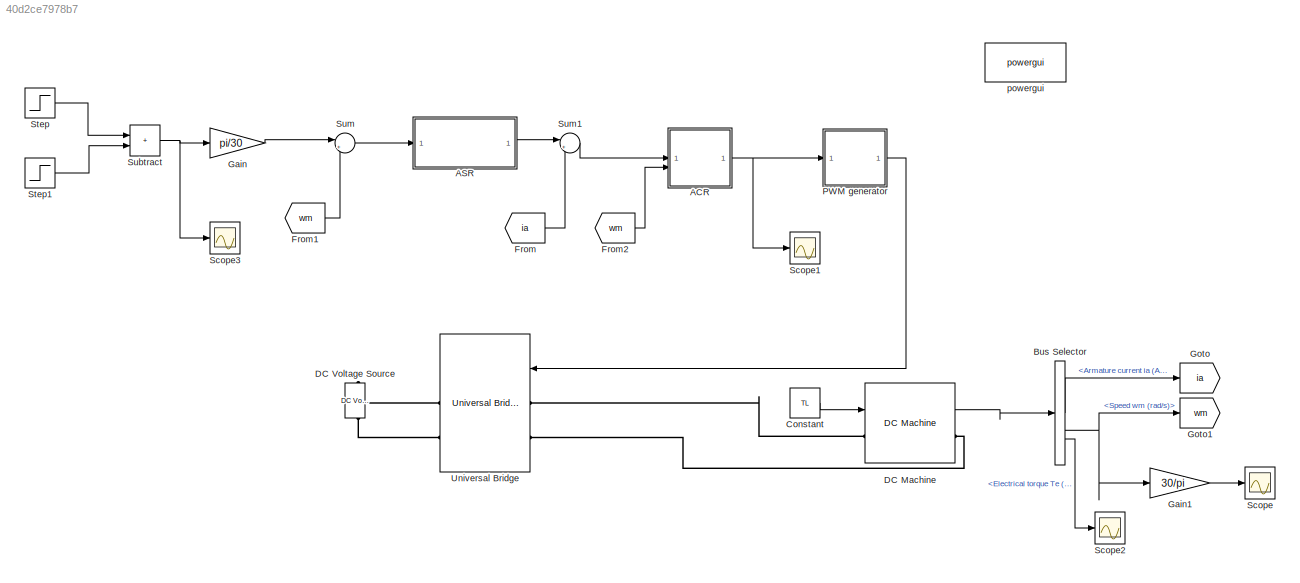
MODEL slx_40d2ce7978b7
KIND model
CONFIG AbsTol = auto
CONFIG EnableMultiTasking = off
CONFIG FixedStep = auto
CONFIG MaxStep = auto
CONFIG MinStep = auto
CONFIG RelTol = 1e-3
CONFIG SampleTimeConstraint = Unconstrained
CONFIG SolverName = FixedStepAuto
CONFIG StartTime = 0.0
CONFIG StopTime = 3
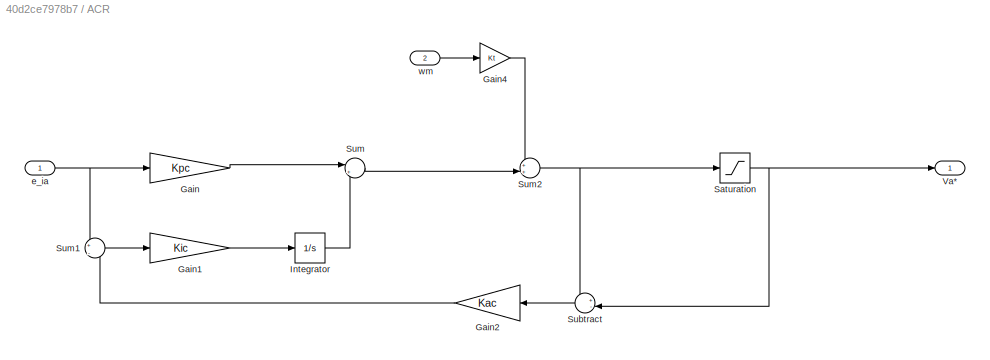
BLOCK [SubSystem] ACR
BLOCK [Gain] ACR/Gain
  Gain = Kpc
BLOCK [Gain] ACR/Gain1
  Gain = Kic
BLOCK [Gain] ACR/Gain2
  Gain = Kac
BLOCK [Gain] ACR/Gain4
  Gain = Kt
BLOCK [Integrator] ACR/Integrator
BLOCK [Saturate] ACR/Saturation
  LowerLimit = -Va_rated
  UpperLimit = Va_rated
BLOCK [Sum] ACR/Subtract
  Inputs = +-|
BLOCK [Sum] ACR/Sum
  Inputs = |++
BLOCK [Sum] ACR/Sum1
  Inputs = +|-
BLOCK [Sum] ACR/Sum2
  Inputs = ++|
BLOCK [Outport] ACR/Va*
BLOCK [Inport] ACR/e_ia
BLOCK [Inport] ACR/wm
  Port = 2
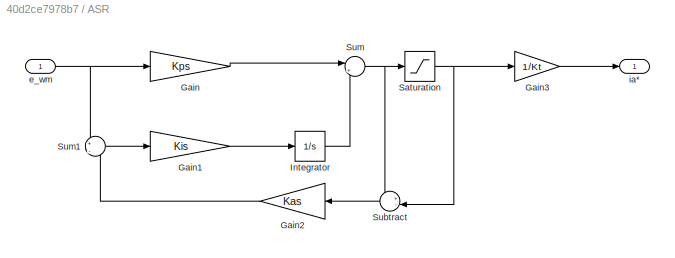
BLOCK [SubSystem] ASR
BLOCK [Gain] ASR/Gain
  Gain = Kps
BLOCK [Gain] ASR/Gain1
  Gain = Kis
BLOCK [Gain] ASR/Gain2
  Gain = Kas
BLOCK [Gain] ASR/Gain3
  Gain = 1/Kt
BLOCK [Integrator] ASR/Integrator
BLOCK [Saturate] ASR/Saturation
  LowerLimit = -Te_rated
  UpperLimit = Te_rated
BLOCK [Sum] ASR/Subtract
  Inputs = +-|
BLOCK [Sum] ASR/Sum
  Inputs = |++
BLOCK [Sum] ASR/Sum1
  Inputs = +|-
BLOCK [Inport] ASR/e_wm
BLOCK [Outport] ASR/ia*
BLOCK [BusSelector] Bus Selector
  OutputSignals = Armature current ia (A),Speed wm (rad/s),Electrical torque Te (n m)
BLOCK [Constant] Constant
  Value = TL
BLOCK [Reference] DC Machine  REF=spsDCMachineLib/DC Machine
  LibrarySourceBlock = sps_lib/Electrical Machines/DC Machine
  SourceBlock = spsDCMachineLib/DC Machine
  SourceType = DC machine
BLOCK [Reference] DC Voltage Source  REF=spsDCVoltageSourceLib/DC Voltage Source
  LibrarySourceBlock = sps_lib/Sources/DC Voltage Source
  SourceBlock = spsDCVoltageSourceLib/DC Voltage Source
  SourceType = DC Voltage Source
BLOCK [From] From
  GotoTag = ia
BLOCK [From] From1
  GotoTag = wm
BLOCK [From] From2
  GotoTag = wm
BLOCK [Gain] Gain
  Gain = pi/30
BLOCK [Gain] Gain1
  Gain = 30/pi
BLOCK [Goto] Goto
  GotoTag = ia
BLOCK [Goto] Goto1
  GotoTag = wm
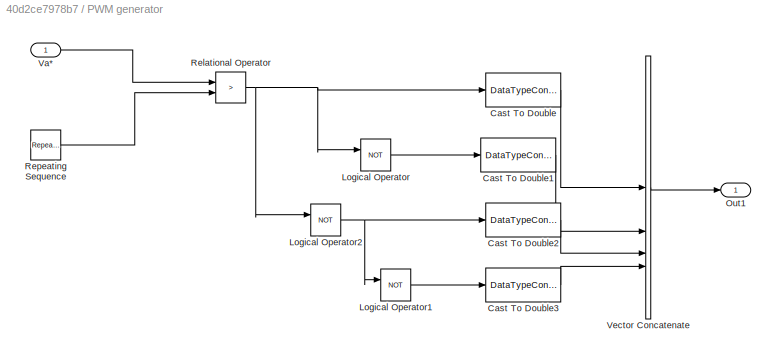
BLOCK [SubSystem] PWM generator
BLOCK [DataTypeConversion] PWM generator/Cast To Double
  OutDataTypeStr = double
  RndMeth = Floor
  SaturateOnIntegerOverflow = off
BLOCK [DataTypeConversion] PWM generator/Cast To Double1
  OutDataTypeStr = double
  RndMeth = Floor
  SaturateOnIntegerOverflow = off
BLOCK [DataTypeConversion] PWM generator/Cast To Double2
  OutDataTypeStr = double
  RndMeth = Floor
  SaturateOnIntegerOverflow = off
BLOCK [DataTypeConversion] PWM generator/Cast To Double3
  OutDataTypeStr = double
  RndMeth = Floor
  SaturateOnIntegerOverflow = off
BLOCK [Logic] PWM generator/Logical Operator
  AllPortsSameDT = off
  Operator = NOT
  OutDataTypeStr = boolean
BLOCK [Logic] PWM generator/Logical Operator1
  AllPortsSameDT = off
  Operator = NOT
  OutDataTypeStr = boolean
BLOCK [Logic] PWM generator/Logical Operator2
  AllPortsSameDT = off
  Operator = NOT
  OutDataTypeStr = boolean
BLOCK [Outport] PWM generator/Out1
BLOCK [RelationalOperator] PWM generator/Relational Operator
  InputSameDT = off
  Operator = >
  OutDataTypeStr = boolean
  RndMeth = Simplest
BLOCK [Reference] PWM generator/Repeating Sequence  REF=simulink/Sources/Repeating
Sequence
  SourceBlock = simulink/Sources/Repeating\nSequence
  SourceType = Repeating table
BLOCK [Inport] PWM generator/Va*
BLOCK [Concatenate] PWM generator/Vector Concatenate
  NumInputs = 4
BLOCK [Scope] Scope
  Floating = off
  NumInputPorts = 1
  ScopeSpecificationString = Simulink.scopes.TimeScopeBlockCfg('CurrentConfiguration', extmgr.ConfigurationSet(extmgr.Configuration('Core','General UI',true),extmgr.Configuration('Core','Source UI',true),extmgr.Configuration('Sources','WiredSimulink',true),extmgr.Configuration('Visuals','Time Domain',true,'SerializedDisplays',{struct('MinYLimReal','-1271.02224','MaxYLimReal','1268.55176','YLabelReal','','MinYLimMag','  0.0000...<+1507ch>
BLOCK [Scope] Scope1
  Floating = off
  NumInputPorts = 1
  ScopeSpecificationString = Simulink.scopes.TimeScopeBlockCfg('CurrentConfiguration', extmgr.ConfigurationSet(extmgr.Configuration('Core','General UI',true),extmgr.Configuration('Core','Source UI',true),extmgr.Configuration('Sources','WiredSimulink',true,'DataLoggingVariableName','ScopeData1'),extmgr.Configuration('Visuals','Time Domain',true,'SerializedDisplays',{struct('MinYLimReal','-175.00000','MaxYLimReal','175.00000','...<+1571ch>
BLOCK [Scope] Scope2
  Floating = off
  NumInputPorts = 1
  ScopeSpecificationString = Simulink.scopes.TimeScopeBlockCfg('CurrentConfiguration', extmgr.ConfigurationSet(extmgr.Configuration('Core','General UI',true),extmgr.Configuration('Core','Source UI',true),extmgr.Configuration('Sources','WiredSimulink',true,'DataLoggingVariableName','ScopeData2'),extmgr.Configuration('Visuals','Time Domain',true,'SerializedDisplays',{struct('MinYLimReal','-15.88461','MaxYLimReal','15.73584','YL...<+1482ch>
BLOCK [Scope] Scope3
  Floating = off
  NumInputPorts = 1
  ScopeSpecificationString = Simulink.scopes.TimeScopeBlockCfg('CurrentConfiguration', extmgr.ConfigurationSet(extmgr.Configuration('Core','General UI',true),extmgr.Configuration('Core','Source UI',true),extmgr.Configuration('Sources','WiredSimulink',true,'DataLoggingVariableName','ScopeData3'),extmgr.Configuration('Visuals','Time Domain',true,'SerializedDisplays',{struct('MinYLimReal','-1271.02224','MaxYLimReal','1268.55176'...<+1549ch>
BLOCK [Step] Step
  After = 1000
  SampleTime = 0
BLOCK [Step] Step1
  After = -2000
  SampleTime = 0
  Time = 2
BLOCK [Sum] Subtract
  IconShape = rectangular
BLOCK [Sum] Sum
  Inputs = |+-
BLOCK [Sum] Sum1
  Inputs = |+-
BLOCK [Reference] Universal Bridge  REF=spsUniversalBridgeLib/Universal Bridge
  LibrarySourceBlock = sps_lib/Power Electronics/Universal Bridge
  SourceBlock = spsUniversalBridgeLib/Universal Bridge
  SourceType = Universal Bridge
BLOCK [Reference] powergui  REF=sps_lib/powergui
  LibrarySourceBlock = sps_lib/powergui
  Priority = 1
  SourceBlock = sps_lib/powergui
  SourceType = PSB option menu block
LINE ACR/Gain1:1 -> ACR/Integrator:1
LINE ACR/Gain2:1 -> ACR/Sum1:2
LINE ACR/Gain4:1 -> ACR/Sum2:1
LINE ACR/Gain:1 -> ACR/Sum:1
LINE ACR/Integrator:1 -> ACR/Sum:2
NET ACR/Saturation:1 -> ACR/Subtract:2, ACR/Va*:1
LINE ACR/Subtract:1 -> ACR/Gain2:1
LINE ACR/Sum1:1 -> ACR/Gain1:1
NET ACR/Sum2:1 -> ACR/Saturation:1, ACR/Subtract:1
LINE ACR/Sum:1 -> ACR/Sum2:2
NET ACR/e_ia:1 -> ACR/Gain:1, ACR/Sum1:1
LINE ACR/wm:1 -> ACR/Gain4:1
NET ACR:1 -> PWM generator:1, Scope1:1
LINE ASR/Gain1:1 -> ASR/Integrator:1
LINE ASR/Gain2:1 -> ASR/Sum1:2
LINE ASR/Gain3:1 -> ASR/ia*:1
LINE ASR/Gain:1 -> ASR/Sum:1
LINE ASR/Integrator:1 -> ASR/Sum:2
NET ASR/Saturation:1 -> ASR/Gain3:1, ASR/Subtract:2
LINE ASR/Subtract:1 -> ASR/Gain2:1
LINE ASR/Sum1:1 -> ASR/Gain1:1
NET ASR/Sum:1 -> ASR/Saturation:1, ASR/Subtract:1
NET ASR/e_wm:1 -> ASR/Gain:1, ASR/Sum1:1
LINE ASR:1 -> Sum1:1
LINE Bus Selector:1 -> Goto:1
NET Bus Selector:2 -> Gain1:1, Goto1:1
LINE Bus Selector:3 -> Scope2:1
LINE Constant:1 -> DC Machine:1
LINE DC Machine:1 -> Bus Selector:1
LINE From1:1 -> Sum:2
LINE From2:1 -> ACR:2
LINE From:1 -> Sum1:2
LINE Gain1:1 -> Scope:1
LINE Gain:1 -> Sum:1
LINE PWM generator/Cast To Double1:1 -> PWM generator/Vector Concatenate:2
LINE PWM generator/Cast To Double2:1 -> PWM generator/Vector Concatenate:3
LINE PWM generator/Cast To Double3:1 -> PWM generator/Vector Concatenate:4
LINE PWM generator/Cast To Double:1 -> PWM generator/Vector Concatenate:1
LINE PWM generator/Logical Operator1:1 -> PWM generator/Cast To Double3:1
NET PWM generator/Logical Operator2:1 -> PWM generator/Cast To Double2:1, PWM generator/Logical Operator1:1
LINE PWM generator/Logical Operator:1 -> PWM generator/Cast To Double1:1
NET PWM generator/Relational Operator:1 -> PWM generator/Cast To Double:1, PWM generator/Logical Operator2:1, PWM generator/Logical Operator:1
LINE PWM generator/Repeating Sequence:1 -> PWM generator/Relational Operator:2
LINE PWM generator/Va*:1 -> PWM generator/Relational Operator:1
LINE PWM generator/Vector Concatenate:1 -> PWM generator/Out1:1
LINE PWM generator:1 -> Universal Bridge:1
LINE Step1:1 -> Subtract:2
LINE Step:1 -> Subtract:1
NET Subtract:1 -> Gain:1, Scope3:1
LINE Sum1:1 -> ACR:1
LINE Sum:1 -> ASR:1
PLINE DC Machine:LConn1 -- Universal Bridge:LConn1
PLINE DC Machine:RConn1 -- Universal Bridge:LConn2
PLINE DC Voltage Source:LConn1 -- Universal Bridge:RConn2
PLINE DC Voltage Source:RConn1 -- Universal Bridge:RConn1
note: NET lines group one-source signal fan-out (src -> all destinations, sorted); 1:1 wires keep LINE
